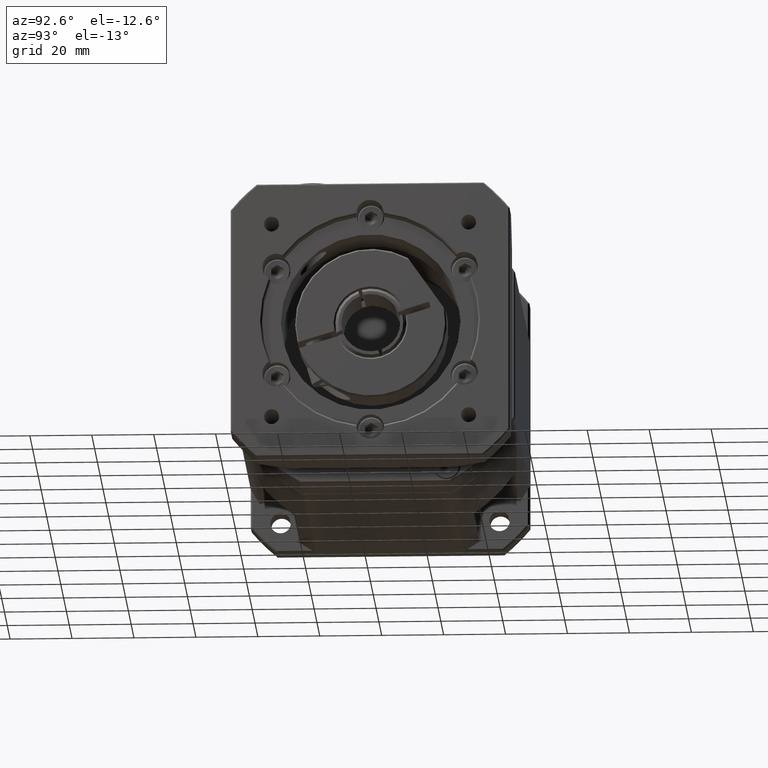
[diagram: clean part render]
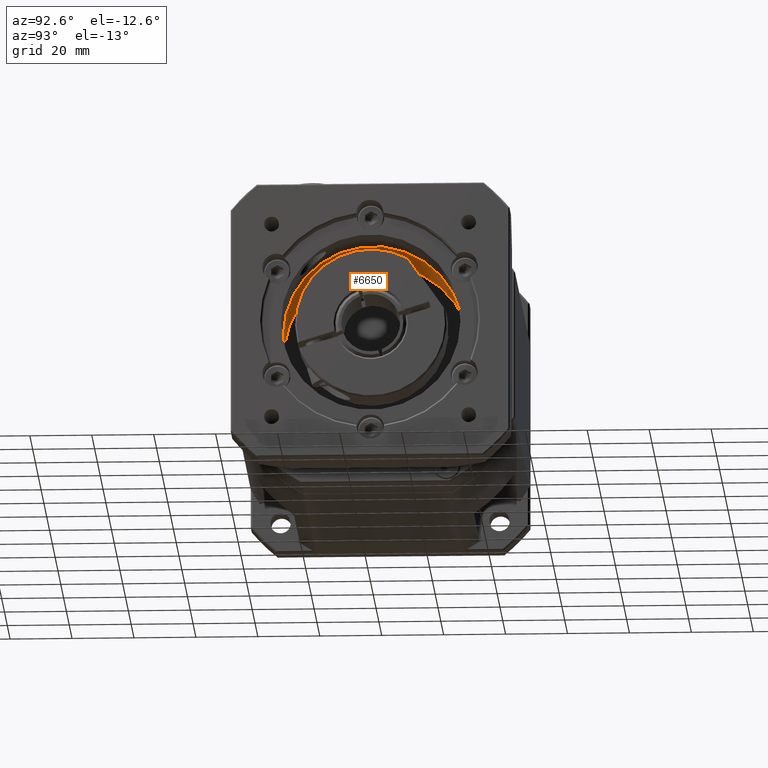
[diagram: same view with one face highlighted and labeled with its STEP entity id]
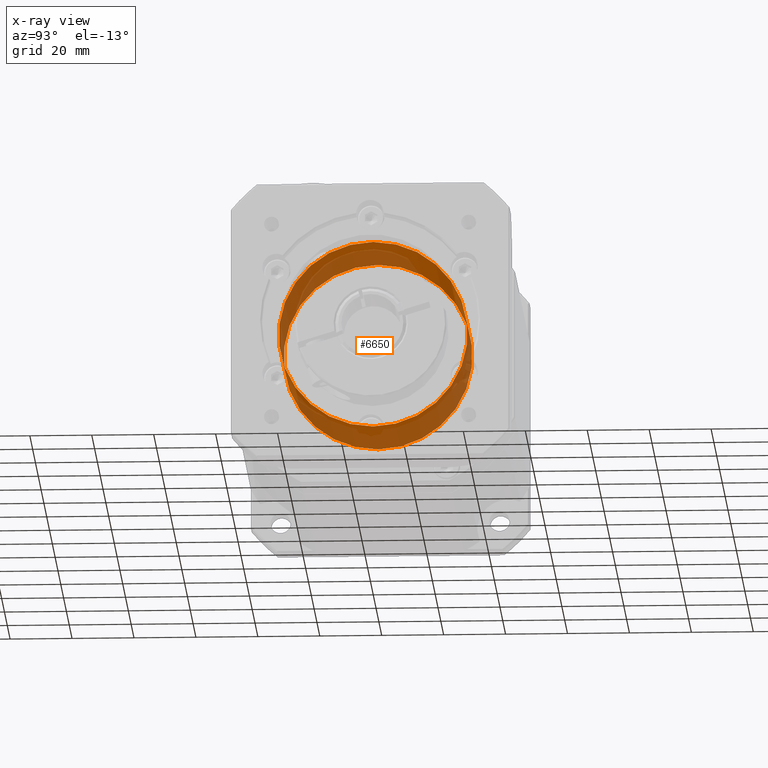
[diagram: x-ray of the same camera — body ghosted, the highlighted face saturated]
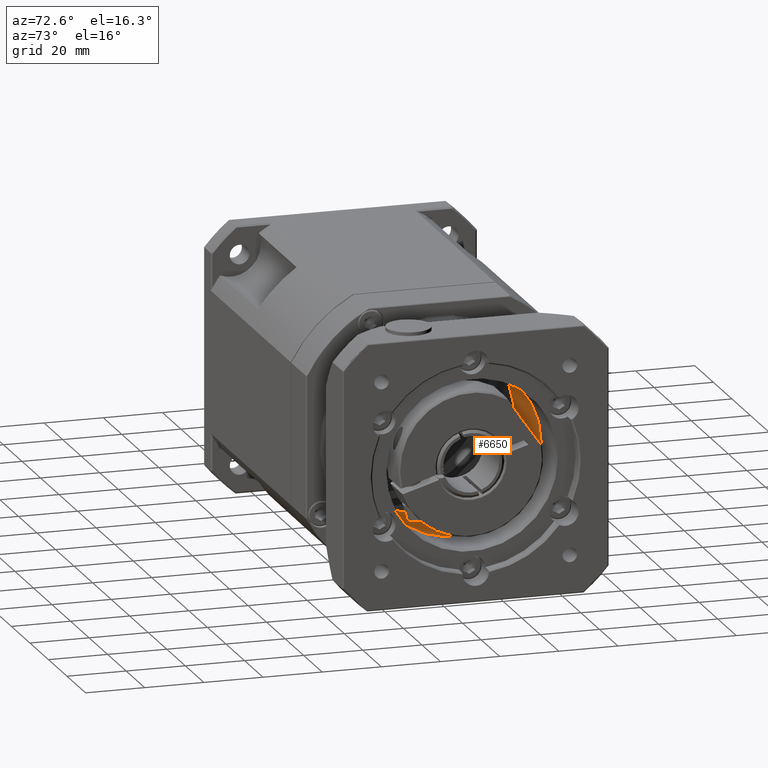
[diagram: same view with one face highlighted and labeled with its STEP entity id]
A machine part, auxiliary view. The second image highlights one B-rep face of the part: STEP entity #6650.
The next image is the same camera in x-ray: the body ghosted, the highlighted face saturated — about 60% of this face is hidden behind the body in this view.
A second angle (auxiliary view) of the same face is appended — the face is thin or edge-on in the first view.
In plain terms, the highlighted cylindrical surface (bore or boss wall) has radius 30.5 mm, axis along (-1, -0, 0).
Its self-contained STEP definition (entity closure, byte-faithful):
#1262=FACE_BOUND('',#2189,.T.);
#1622=FACE_OUTER_BOUND('',#2188,.T.);
#2188=EDGE_LOOP('',(#5331));
#2189=EDGE_LOOP('',(#5332));
#2634=CIRCLE('',#7227,30.5);
#2669=CIRCLE('',#7298,30.5);
#3127=VERTEX_POINT('',#10955);
#3169=VERTEX_POINT('',#11166);
#3848=EDGE_CURVE('',#3127,#3127,#2634,.T.);
#3908=EDGE_CURVE('',#3169,#3169,#2669,.T.);
#5331=ORIENTED_EDGE('',*,*,#3848,.T.);
#5332=ORIENTED_EDGE('',*,*,#3908,.F.);
#6015=CYLINDRICAL_SURFACE('',#7349,30.5);
#6650=ADVANCED_FACE('',(#1622,#1262),#6015,.F.);
#7227=AXIS2_PLACEMENT_3D('',#10956,#8588,#8589);
#7298=AXIS2_PLACEMENT_3D('',#11167,#8742,#8743);
#7349=AXIS2_PLACEMENT_3D('',#11505,#8868,#8869);
#8588=DIRECTION('center_axis',(1.,7.32403674775559E-22,-4.77265694971786E-15));
#8589=DIRECTION('ref_axis',(4.77265694971786E-15,-2.39738784379994E-15,
1.));
#8742=DIRECTION('center_axis',(1.,7.32403674775559E-22,-4.77265694971786E-15));
#8743=DIRECTION('ref_axis',(4.77265694971786E-15,-2.39738784379994E-15,
1.));
#8868=DIRECTION('center_axis',(-1.,-7.32403674775559E-22,4.77265694971786E-15));
#8869=DIRECTION('ref_axis',(4.77265694971786E-15,-2.39738784379994E-15,
1.));
#10955=CARTESIAN_POINT('',(67.9702896556817,-32.3933275789246,-19.6496122451693));
#10956=CARTESIAN_POINT('Origin',(67.9702896556818,-32.3933275789246,10.8503877548307));
#11166=CARTESIAN_POINT('',(33.9702896556817,-32.3933275789246,-19.6496122451692));
#11167=CARTESIAN_POINT('Origin',(33.9702896556818,-32.3933275789246,10.8503877548308));
#11505=CARTESIAN_POINT('Origin',(70.9702896556818,-32.3933275789246,10.8503877548307));